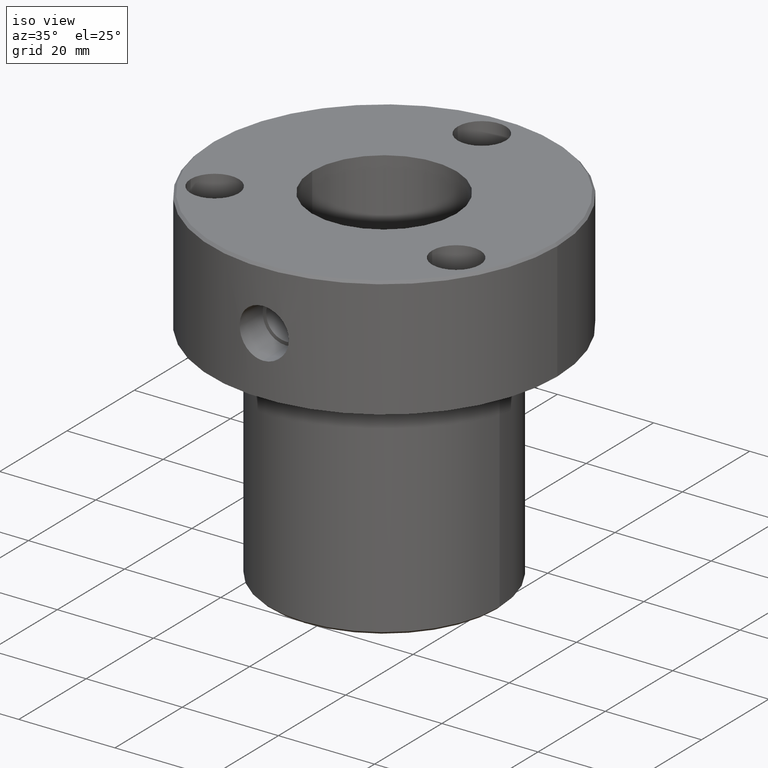
[diagram: clean part render]
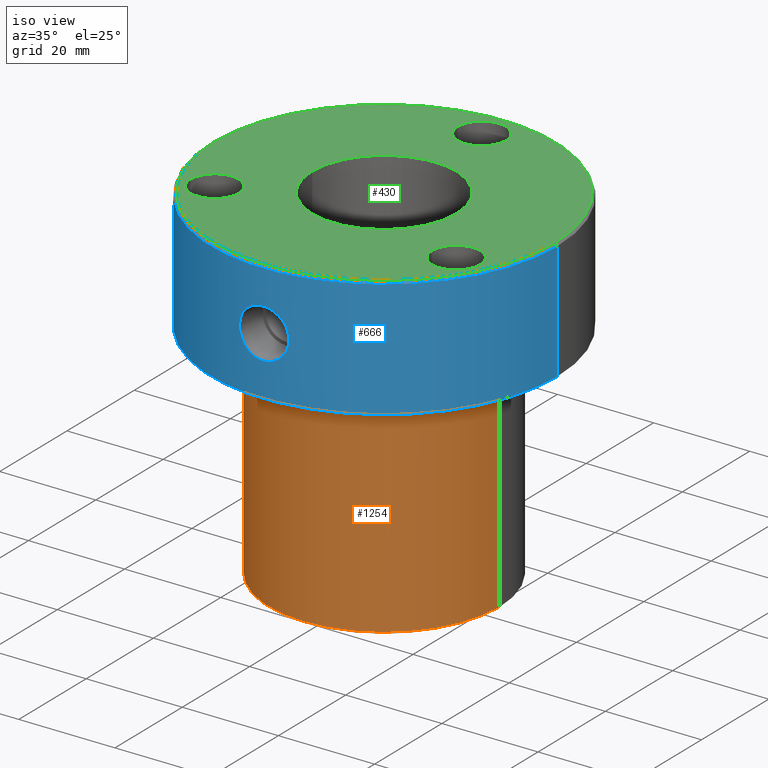
[diagram: same view with three faces highlighted in distinct colors, each labeled with its STEP entity id]
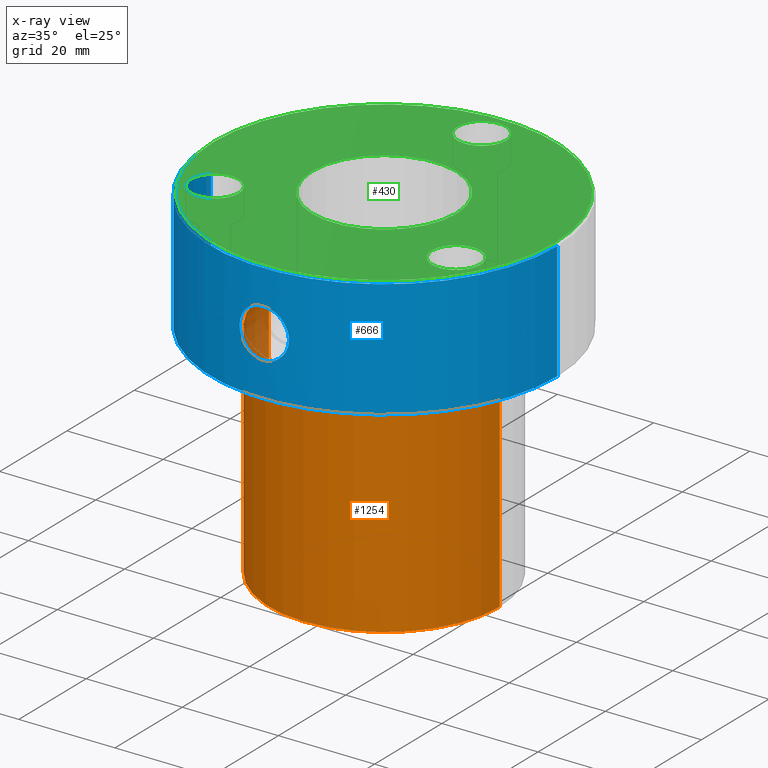
[diagram: x-ray of the same camera — body ghosted, the three highlighted faces saturated]
A machine part, iso view with three faces highlighted in distinct colors.
The next image is the same camera in x-ray (body ghosted, the three faces saturated) — at least one of them is partly hidden behind the body in this view.
Their STEP definitions:

[orange] entity #1254 — the highlighted cylindrical surface (partial cylindrical patch) has radius 24 mm, axis along (-0, -0, 1).
#60 = ORIENTED_EDGE ( 'NONE', *, *, #1068, .F. ) ;
#87 = CARTESIAN_POINT ( 'NONE',  ( -24.00000000000000000, 2.939152317953647894E-15, -71.50000000000000000 ) ) ;
#98 = CARTESIAN_POINT ( 'NONE',  ( -24.00000000000000000, 2.939152317953647894E-15, 0.000000000000000000 ) ) ;
#125 = FACE_OUTER_BOUND ( 'NONE', #398, .T. ) ;
#161 = CARTESIAN_POINT ( 'NONE',  ( 24.00000000000000000, 0.000000000000000000, 0.000000000000000000 ) ) ;
#283 = CARTESIAN_POINT ( 'NONE',  ( 0.000000000000000000, 0.000000000000000000, -24.99999999999999289 ) ) ;
#294 = DIRECTION ( 'NONE',  ( -0.000000000000000000, -0.000000000000000000, 1.000000000000000000 ) ) ;
#310 = CARTESIAN_POINT ( 'NONE',  ( 0.000000000000000000, 0.000000000000000000, 0.000000000000000000 ) ) ;
#334 = LINE ( 'NONE', #161, #629 ) ;
#398 = EDGE_LOOP ( 'NONE', ( #60, #1040, #686, #536 ) ) ;
#410 = EDGE_CURVE ( 'NONE', #486, #512, #412, .T. ) ;
#412 = CIRCLE ( 'NONE', #1156, 24.00000000000000000 ) ;
#461 = EDGE_CURVE ( 'NONE', #512, #537, #334, .T. ) ;
#484 = DIRECTION ( 'NONE',  ( 1.000000000000000000, 0.000000000000000000, 0.000000000000000000 ) ) ;
#486 = VERTEX_POINT ( 'NONE', #87 ) ;
#509 = DIRECTION ( 'NONE',  ( -0.000000000000000000, -0.000000000000000000, 1.000000000000000000 ) ) ;
#512 = VERTEX_POINT ( 'NONE', #1050 ) ;
#536 = ORIENTED_EDGE ( 'NONE', *, *, #1176, .F. ) ;
#537 = VERTEX_POINT ( 'NONE', #1104 ) ;
#600 = LINE ( 'NONE', #98, #1204 ) ;
#627 = VERTEX_POINT ( 'NONE', #763 ) ;
#629 = VECTOR ( 'NONE', #1147, 1000.000000000000000 ) ;
#633 = CARTESIAN_POINT ( 'NONE',  ( 0.000000000000000000, 0.000000000000000000, -71.50000000000000000 ) ) ;
#686 = ORIENTED_EDGE ( 'NONE', *, *, #461, .T. ) ;
#749 = AXIS2_PLACEMENT_3D ( 'NONE', #283, #294, #484 ) ;
#763 = CARTESIAN_POINT ( 'NONE',  ( -24.00000000000000000, 2.939152317953647894E-15, -24.99999999999999289 ) ) ;
#860 = CIRCLE ( 'NONE', #749, 24.00000000000000000 ) ;
#909 = DIRECTION ( 'NONE',  ( -0.000000000000000000, -0.000000000000000000, 1.000000000000000000 ) ) ;
#918 = DIRECTION ( 'NONE',  ( 1.000000000000000000, 0.000000000000000000, 0.000000000000000000 ) ) ;
#921 = DIRECTION ( 'NONE',  ( -1.000000000000000000, 0.000000000000000000, 0.000000000000000000 ) ) ;
#1016 = CYLINDRICAL_SURFACE ( 'NONE', #1180, 24.00000000000000000 ) ;
#1040 = ORIENTED_EDGE ( 'NONE', *, *, #410, .T. ) ;
#1050 = CARTESIAN_POINT ( 'NONE',  ( 24.00000000000000000, 0.000000000000000000, -71.50000000000000000 ) ) ;
#1068 = EDGE_CURVE ( 'NONE', #486, #627, #600, .T. ) ;
#1104 = CARTESIAN_POINT ( 'NONE',  ( 24.00000000000000000, 0.000000000000000000, -24.99999999999999289 ) ) ;
#1147 = DIRECTION ( 'NONE',  ( -0.000000000000000000, -0.000000000000000000, 1.000000000000000000 ) ) ;
#1156 = AXIS2_PLACEMENT_3D ( 'NONE', #633, #509, #921 ) ;
#1165 = DIRECTION ( 'NONE',  ( -0.000000000000000000, -0.000000000000000000, 1.000000000000000000 ) ) ;
#1176 = EDGE_CURVE ( 'NONE', #627, #537, #860, .T. ) ;
#1180 = AXIS2_PLACEMENT_3D ( 'NONE', #310, #909, #918 ) ;
#1204 = VECTOR ( 'NONE', #1165, 1000.000000000000000 ) ;
#1254 = ADVANCED_FACE ( 'NONE', ( #125 ), #1016, .T. ) ;

[blue] entity #666 — the highlighted cylindrical surface (partial cylindrical patch) has radius 36 mm, axis along (-0, -0, 1).
#1 = CARTESIAN_POINT ( 'NONE',  ( 3.134851411221557971, -35.86436338319735029, -8.663408683850164493 ) ) ;
#6 = CARTESIAN_POINT ( 'NONE',  ( 4.454688299235059823, -35.72381133161002964, -15.32627421644871468 ) ) ;
#11 = CARTESIAN_POINT ( 'NONE',  ( 36.00000000000000000, 0.000000000000000000, 0.000000000000000000 ) ) ;
#12 = CARTESIAN_POINT ( 'NONE',  ( 4.455019366375490897, -35.72377563291573921, -10.17406853261149990 ) ) ;
#21 = CARTESIAN_POINT ( 'NONE',  ( 5.132468915830044054, -35.63225733572879506, -13.08687422678917933 ) ) ;
#56 = ORIENTED_EDGE ( 'NONE', *, *, #383, .T. ) ;
#65 = CARTESIAN_POINT ( 'NONE',  ( -4.615790708340534287, -35.70309573215841681, -15.02364172483657256 ) ) ;
#71 = CARTESIAN_POINT ( 'NONE',  ( -0.3361067275072111560, -36.00000000000001421, -7.606626999999983596 ) ) ;
#77 = CARTESIAN_POINT ( 'NONE',  ( -5.066001198085445800, -35.64178358665389368, -11.90850973993781992 ) ) ;
#84 = VERTEX_POINT ( 'NONE', #855 ) ;
#89 = CARTESIAN_POINT ( 'NONE',  ( 2.570089392832816344, -35.90845072443985941, -17.20524208273297617 ) ) ;
#93 = CARTESIAN_POINT ( 'NONE',  ( 1.335832289506346138, -35.97675110359922712, -17.72775875594555117 ) ) ;
#108 = CARTESIAN_POINT ( 'NONE',  ( 4.870776703703421973, -35.66920957809382742, -14.40600504608524979 ) ) ;
#114 = CARTESIAN_POINT ( 'NONE',  ( 2.571459298321395526, -35.90915553629102419, -8.285819686161667974 ) ) ;
#153 = VERTEX_POINT ( 'NONE', #376 ) ;
#156 = CARTESIAN_POINT ( 'NONE',  ( -3.132282132631538207, -35.86455603857671548, -8.661827584422121973 ) ) ;
#158 = CARTESIAN_POINT ( 'NONE',  ( -1.335362368965270274, -35.97674113740099955, -17.72768090413853415 ) ) ;
#163 = DIRECTION ( 'NONE',  ( -0.000000000000000000, -0.000000000000000000, 1.000000000000000000 ) ) ;
#165 = EDGE_CURVE ( 'NONE', #637, #1020, #201, .T. ) ;
#167 = CARTESIAN_POINT ( 'NONE',  ( -5.132480326373275226, -35.63225569218960942, -13.08318454073698511 ) ) ;
#172 = CARTESIAN_POINT ( 'NONE',  ( -4.452942759247334514, -35.72402988663296242, -10.17069915215211573 ) ) ;
#184 = CARTESIAN_POINT ( 'NONE',  ( -0.6715231242244814602, -35.99412889237471092, -17.85196652225037539 ) ) ;
#189 = CARTESIAN_POINT ( 'NONE',  ( 4.869320642961361578, -35.66940571283051753, -11.09014689618406635 ) ) ;
#197 = CARTESIAN_POINT ( 'NONE',  ( 5.099130274031547394, -35.63710454467858568, -12.07612216934112404 ) ) ;
#201 = LINE ( 'NONE', #708, #206 ) ;
#206 = VECTOR ( 'NONE', #1091, 1000.000000000000000 ) ;
#215 = CARTESIAN_POINT ( 'NONE',  ( 4.175012378777728905, -35.75721056505209106, -9.753807887219853257 ) ) ;
#250 = AXIS2_PLACEMENT_3D ( 'NONE', #525, #908, #895 ) ;
#255 = CARTESIAN_POINT ( 'NONE',  ( -2.576638186247376172, -35.90875484596557499, -17.21084344985863979 ) ) ;
#272 = CARTESIAN_POINT ( 'NONE',  ( -4.081358766602609656, -35.76838717605889428, -9.613498045051994012 ) ) ;
#284 = AXIS2_PLACEMENT_3D ( 'NONE', #1193, #322, #452 ) ;
#289 = CARTESIAN_POINT ( 'NONE',  ( 1.657239417139547255, -35.96316859498720220, -17.62941402757830645 ) ) ;
#293 = CARTESIAN_POINT ( 'NONE',  ( 5.099012622426519314, -35.63712115515072298, -13.42446733174833362 ) ) ;
#299 = CARTESIAN_POINT ( 'NONE',  ( 6.298815282759539701E-16, -36.00000000000000000, -7.606626999999987149 ) ) ;
#300 = FACE_BOUND ( 'NONE', #1227, .T. ) ;
#305 = VECTOR ( 'NONE', #702, 1000.000000000000000 ) ;
#322 = DIRECTION ( 'NONE',  ( 0.000000000000000000, 0.000000000000000000, -1.000000000000000000 ) ) ;
#323 = CYLINDRICAL_SURFACE ( 'NONE', #250, 36.00000000000000000 ) ;
#332 = VERTEX_POINT ( 'NONE', #476 ) ;
#347 = EDGE_CURVE ( 'NONE', #332, #153, #779, .T. ) ;
#351 = CARTESIAN_POINT ( 'NONE',  ( -1.334472260636662133, -35.97676177568234124, -7.772172400854750585 ) ) ;
#370 = EDGE_CURVE ( 'NONE', #1010, #1020, #524, .T. ) ;
#376 = CARTESIAN_POINT ( 'NONE',  ( 6.298815282759539701E-16, -36.00000000000000000, -7.606626999999987149 ) ) ;
#383 = EDGE_CURVE ( 'NONE', #637, #84, #970, .T. ) ;
#390 = CARTESIAN_POINT ( 'NONE',  ( 4.968518926129060098, -35.65554893085495536, -11.41781017927310771 ) ) ;
#399 = CARTESIAN_POINT ( 'NONE',  ( 1.812095684196976642, -35.95469751019649607, -7.934954253576164795 ) ) ;
#406 = CARTESIAN_POINT ( 'NONE',  ( 4.612444849566888827, -35.70353119707042566, -10.46937732415865874 ) ) ;
#426 = CARTESIAN_POINT ( 'NONE',  ( -3.867744682383481347, -35.79242907306673516, -16.14777688475753337 ) ) ;
#448 = CARTESIAN_POINT ( 'NONE',  ( -5.124100043890623013, -35.63346569493480587, -12.41299369725978963 ) ) ;
#452 = DIRECTION ( 'NONE',  ( 1.000000000000000000, 0.000000000000000000, 0.000000000000000000 ) ) ;
#458 = CARTESIAN_POINT ( 'NONE',  ( -2.577004002287619056, -35.90872625943177354, -8.289395687327473894 ) ) ;
#463 = CARTESIAN_POINT ( 'NONE',  ( -5.100166516558003238, -35.63695738235751520, -13.41789004543118402 ) ) ;
#476 = CARTESIAN_POINT ( 'NONE',  ( 3.571817028434180789E-21, -36.00000000000000000, -17.89337299999998621 ) ) ;
#477 = ORIENTED_EDGE ( 'NONE', *, *, #347, .F. ) ;
#483 = CARTESIAN_POINT ( 'NONE',  ( 4.612450577060112522, -35.70353312065206097, -15.03093629859708713 ) ) ;
#488 = CARTESIAN_POINT ( 'NONE',  ( 2.121153321150935245, -35.93778920659239873, -17.43656400794046490 ) ) ;
#494 = CARTESIAN_POINT ( 'NONE',  ( 2.272818404094694156, -35.92849133234913239, -17.36465140196043677 ) ) ;
#505 = CARTESIAN_POINT ( 'NONE',  ( 3.135146423121419890, -35.86431980584649892, -16.83614949334460675 ) ) ;
#514 = CARTESIAN_POINT ( 'NONE',  ( 2.275809720756746035, -35.92932709345632247, -8.127738614779113746 ) ) ;
#524 = CIRCLE ( 'NONE', #284, 36.00000000000000000 ) ;
#525 = CARTESIAN_POINT ( 'NONE',  ( 0.000000000000000000, 0.000000000000000000, 0.000000000000000000 ) ) ;
#554 = CARTESIAN_POINT ( 'NONE',  ( -3.394016580218661261, -35.84044962157522463, -8.877090623383150358 ) ) ;
#555 = CARTESIAN_POINT ( 'NONE',  ( 0.000000000000000000, 0.000000000000000000, -24.99999999999999289 ) ) ;
#557 = ORIENTED_EDGE ( 'NONE', *, *, #165, .F. ) ;
#559 = CARTESIAN_POINT ( 'NONE',  ( -3.869813446050350159, -35.79220196518004826, -9.354639173738936719 ) ) ;
#569 = CARTESIAN_POINT ( 'NONE',  ( 36.00000000000000000, 0.000000000000000000, -0.4999999999999796274 ) ) ;
#573 = B_SPLINE_CURVE_WITH_KNOTS ( 'NONE', 3,
 ( #634, #71, #957, #351, #1229, #1036, #458, #156, #554, #559, #272, #172, #1137, #675, #947, #77, #668, #448, #1049, #167, #463, #922, #868, #65, #1236, #768, #426, #753, #1135, #255, #659, #1042, #158, #978, #184, #785, #678, #1057 ),
 .UNSPECIFIED., .F., .F.,
 ( 4, 2, 2, 2, 2, 2, 2, 2, 2, 2, 2, 2, 2, 2, 2, 2, 2, 2, 4 ),
 ( 0.02023265630584750174, 0.02123748081429662621, 0.02224230532274575414, 0.02324712983119488208, 0.02425195433964400654, 0.02525677884809313448, 0.02626160335654226241, 0.02726642786499138688, 0.02776884011921594911, 0.02827125237344051134, 0.02927607688188963581, 0.03028090139033876027, 0.03128572589878789167, 0.03229055040723700920, 0.03329537491568613367, 0.03430019942413525813, 0.03530502393258437566, 0.03580743618680894136, 0.03630984844103350012 ),
 .UNSPECIFIED. ) ;
#589 = CARTESIAN_POINT ( 'NONE',  ( 3.393533373212614723, -35.84048388370862881, -8.876894584173426139 ) ) ;
#597 = CARTESIAN_POINT ( 'NONE',  ( 1.654126241111264051, -35.96234114261679338, -7.878137646354945289 ) ) ;
#613 = CARTESIAN_POINT ( 'NONE',  ( -36.00000000000000000, 4.408728476930470856E-15, -24.99999999999999289 ) ) ;
#634 = CARTESIAN_POINT ( 'NONE',  ( 6.298815282759539701E-16, -36.00000000000000000, -7.606626999999987149 ) ) ;
#637 = VERTEX_POINT ( 'NONE', #613 ) ;
#659 = CARTESIAN_POINT ( 'NONE',  ( -2.275587720639904443, -35.92934925681800706, -17.37244262154168339 ) ) ;
#666 = ADVANCED_FACE ( 'NONE', ( #721, #300 ), #323, .T. ) ;
#668 = CARTESIAN_POINT ( 'NONE',  ( -5.091049653408040498, -35.63820270606292695, -12.07721189375376447 ) ) ;
#670 = DIRECTION ( 'NONE',  ( 1.000000000000000000, 0.000000000000000000, 0.000000000000000000 ) ) ;
#675 = CARTESIAN_POINT ( 'NONE',  ( -4.870061513962859578, -35.66930335032450472, -11.09241811007563072 ) ) ;
#678 = CARTESIAN_POINT ( 'NONE',  ( -0.1675429042383714540, -36.00000000000000711, -17.89337299999999331 ) ) ;
#691 = CARTESIAN_POINT ( 'NONE',  ( 3.867194275753138122, -35.79247892995611835, -16.14821262891811671 ) ) ;
#702 = DIRECTION ( 'NONE',  ( -0.000000000000000000, -0.000000000000000000, 1.000000000000000000 ) ) ;
#708 = CARTESIAN_POINT ( 'NONE',  ( -36.00000000000000000, 4.408728476930470856E-15, 0.000000000000000000 ) ) ;
#712 = CARTESIAN_POINT ( 'NONE',  ( 3.393221447277317893, -35.84051879824716025, -16.62348283471833454 ) ) ;
#721 = FACE_OUTER_BOUND ( 'NONE', #1216, .T. ) ;
#753 = CARTESIAN_POINT ( 'NONE',  ( -3.390904222931096612, -35.84074771024629769, -16.62568980151061382 ) ) ;
#765 = CARTESIAN_POINT ( 'NONE',  ( -36.00000000000000000, 4.408728476930470856E-15, -0.4999999999999796274 ) ) ;
#768 = CARTESIAN_POINT ( 'NONE',  ( -4.082279283164364614, -35.76828787354437367, -15.88554681719237038 ) ) ;
#779 = B_SPLINE_CURVE_WITH_KNOTS ( 'NONE', 3,
 ( #994, #822, #882, #93, #289, #488, #494, #89, #999, #505, #712, #691, #1085, #6, #483, #108, #888, #293, #21, #894, #197, #390, #189, #406, #12, #215, #795, #1081, #1162, #589, #1, #114, #514, #399, #597, #801, #986, #907, #1170, #299 ),
 .UNSPECIFIED., .F., .F.,
 ( 4, 2, 2, 2, 2, 2, 2, 2, 2, 2, 2, 2, 2, 2, 2, 2, 2, 2, 2, 4 ),
 ( 0.004144744938621530879, 0.005150239399073153028, 0.006155733859524775177, 0.006658481089750586251, 0.007161228319976396459, 0.008166722780428018608, 0.009172217240879639022, 0.01017771170133125944, 0.01118320616178287812, 0.01218870062223450026, 0.01319419508268611721, 0.01419968954313774109, 0.01520518400358935804, 0.01570793123381516998, 0.01621067846404098539, 0.01721617292449261274, 0.01822166738494424357, 0.01872441461517005898, 0.01922716184539587439, 0.02023265630584750174 ),
 .UNSPECIFIED. ) ;
#785 = CARTESIAN_POINT ( 'NONE',  ( -0.3353535181282963351, -35.99883048162996602, -17.88517202957152108 ) ) ;
#787 = ORIENTED_EDGE ( 'NONE', *, *, #370, .T. ) ;
#795 = CARTESIAN_POINT ( 'NONE',  ( 4.073750510498462596, -35.76892631714162718, -9.616935401809428186 ) ) ;
#801 = CARTESIAN_POINT ( 'NONE',  ( 1.331207150646882331, -35.97574184921764129, -7.779769563068786198 ) ) ;
#808 = LINE ( 'NONE', #11, #305 ) ;
#822 = CARTESIAN_POINT ( 'NONE',  ( 0.3353092220245999511, -35.99999999999999289, -17.89337299999998621 ) ) ;
#855 = CARTESIAN_POINT ( 'NONE',  ( 36.00000000000000000, 0.000000000000000000, -24.99999999999999289 ) ) ;
#868 = CARTESIAN_POINT ( 'NONE',  ( -4.870985339044030304, -35.66917535561609043, -14.40470360826312657 ) ) ;
#876 = EDGE_CURVE ( 'NONE', #153, #332, #573, .T. ) ;
#882 = CARTESIAN_POINT ( 'NONE',  ( 0.6695539294417952592, -35.99531588153639916, -17.86076756866215121 ) ) ;
#888 = CARTESIAN_POINT ( 'NONE',  ( 4.968640645482770068, -35.65553174595231667, -14.08157981711600470 ) ) ;
#894 = CARTESIAN_POINT ( 'NONE',  ( 5.132256074719487415, -35.63228799270495273, -12.40988469272170569 ) ) ;
#895 = DIRECTION ( 'NONE',  ( 1.000000000000000000, 0.000000000000000000, 0.000000000000000000 ) ) ;
#907 = CARTESIAN_POINT ( 'NONE',  ( 0.6698195256892720550, -35.99528778390568107, -7.639439484074522113 ) ) ;
#908 = DIRECTION ( 'NONE',  ( -0.000000000000000000, -0.000000000000000000, 1.000000000000000000 ) ) ;
#922 = CARTESIAN_POINT ( 'NONE',  ( -4.968358492892852141, -35.65557240957834750, -14.08375826072354720 ) ) ;
#926 = ORIENTED_EDGE ( 'NONE', *, *, #876, .F. ) ;
#947 = CARTESIAN_POINT ( 'NONE',  ( -4.967239168825848594, -35.65572824311934852, -11.41264983495981333 ) ) ;
#953 = EDGE_CURVE ( 'NONE', #84, #1010, #808, .T. ) ;
#957 = CARTESIAN_POINT ( 'NONE',  ( -0.6768412377640536937, -35.99513981105601346, -7.640486352620248667 ) ) ;
#970 = CIRCLE ( 'NONE', #1140, 36.00000000000000000 ) ;
#978 = CARTESIAN_POINT ( 'NONE',  ( -0.8401113678963481046, -35.99057497138012707, -17.82680413233868322 ) ) ;
#986 = CARTESIAN_POINT ( 'NONE',  ( 1.165764879794188413, -35.98150000286027250, -7.738214538170568702 ) ) ;
#994 = CARTESIAN_POINT ( 'NONE',  ( 3.571817028434180789E-21, -36.00000000000000000, -17.89337299999998621 ) ) ;
#999 = CARTESIAN_POINT ( 'NONE',  ( 2.715994306536742897, -35.89767429074579752, -17.11743241194078635 ) ) ;
#1010 = VERTEX_POINT ( 'NONE', #569 ) ;
#1020 = VERTEX_POINT ( 'NONE', #765 ) ;
#1036 = CARTESIAN_POINT ( 'NONE',  ( -2.279323674699770486, -35.92913036428053886, -8.129239255269382625 ) ) ;
#1042 = CARTESIAN_POINT ( 'NONE',  ( -1.655426372826040105, -35.96325904331931156, -17.63009013256227320 ) ) ;
#1049 = CARTESIAN_POINT ( 'NONE',  ( -5.132303483038378467, -35.63228116415699986, -12.58068670786477483 ) ) ;
#1057 = CARTESIAN_POINT ( 'NONE',  ( 3.571817028434180789E-21, -36.00000000000000000, -17.89337299999998621 ) ) ;
#1081 = CARTESIAN_POINT ( 'NONE',  ( 3.860273976072881918, -35.79259445657086758, -9.356314350695761561 ) ) ;
#1085 = CARTESIAN_POINT ( 'NONE',  ( 4.083460599242995315, -35.76814635166661560, -15.88375512178560456 ) ) ;
#1091 = DIRECTION ( 'NONE',  ( -0.000000000000000000, -0.000000000000000000, 1.000000000000000000 ) ) ;
#1135 = CARTESIAN_POINT ( 'NONE',  ( -3.132516396897012001, -35.86453791635487676, -16.83802151031922989 ) ) ;
#1137 = CARTESIAN_POINT ( 'NONE',  ( -4.613851569483705894, -35.70334822312924672, -10.47230001879731631 ) ) ;
#1140 = AXIS2_PLACEMENT_3D ( 'NONE', #555, #163, #670 ) ;
#1162 = CARTESIAN_POINT ( 'NONE',  ( 3.747803063487487041, -35.80458155935752984, -9.232037138303441637 ) ) ;
#1170 = CARTESIAN_POINT ( 'NONE',  ( 0.3363308217378480625, -36.00000000000000000, -7.606626999999984484 ) ) ;
#1193 = CARTESIAN_POINT ( 'NONE',  ( 0.000000000000000000, 0.000000000000000000, -0.4999999999999796274 ) ) ;
#1198 = ORIENTED_EDGE ( 'NONE', *, *, #953, .T. ) ;
#1216 = EDGE_LOOP ( 'NONE', ( #557, #56, #1198, #787 ) ) ;
#1227 = EDGE_LOOP ( 'NONE', ( #477, #926 ) ) ;
#1229 = CARTESIAN_POINT ( 'NONE',  ( -1.655037379787138496, -35.96329484931852960, -7.869619187362687285 ) ) ;
#1236 = CARTESIAN_POINT ( 'NONE',  ( -4.456035437276217870, -35.72365000573475413, -15.32423349465898177 ) ) ;

[green] entity #430 — the highlighted planar face has unit normal (0, -0, 1).
#19 = EDGE_LOOP ( 'NONE', ( #449, #671 ) ) ;
#23 = DIRECTION ( 'NONE',  ( 1.000000000000000000, 0.000000000000000000, 0.000000000000000000 ) ) ;
#25 = DIRECTION ( 'NONE',  ( 0.000000000000000000, -0.000000000000000000, 1.000000000000000000 ) ) ;
#29 = AXIS2_PLACEMENT_3D ( 'NONE', #39, #109, #802 ) ;
#36 = EDGE_CURVE ( 'NONE', #1101, #185, #264, .T. ) ;
#39 = CARTESIAN_POINT ( 'NONE',  ( -25.11473670974875105, -14.49999999999994316, 0.000000000000000000 ) ) ;
#42 = FACE_BOUND ( 'NONE', #1032, .T. ) ;
#69 = EDGE_CURVE ( 'NONE', #518, #799, #709, .T. ) ;
#97 = DIRECTION ( 'NONE',  ( 1.000000000000000000, 0.000000000000000000, 0.000000000000000000 ) ) ;
#109 = DIRECTION ( 'NONE',  ( -0.000000000000000000, -0.000000000000000000, 1.000000000000000000 ) ) ;
#113 = CARTESIAN_POINT ( 'NONE',  ( -20.11473670974875105, -14.49999999999994316, 0.000000000000000000 ) ) ;
#127 = FACE_BOUND ( 'NONE', #717, .T. ) ;
#137 = VERTEX_POINT ( 'NONE', #188 ) ;
#146 = ORIENTED_EDGE ( 'NONE', *, *, #728, .T. ) ;
#159 = EDGE_CURVE ( 'NONE', #915, #372, #816, .T. ) ;
#183 = CIRCLE ( 'NONE', #771, 5.000000000000000888 ) ;
#185 = VERTEX_POINT ( 'NONE', #1039 ) ;
#188 = CARTESIAN_POINT ( 'NONE',  ( -35.50000000000001421, 0.000000000000000000, 0.000000000000000000 ) ) ;
#208 = CIRCLE ( 'NONE', #744, 5.000000000000000888 ) ;
#221 = ORIENTED_EDGE ( 'NONE', *, *, #567, .F. ) ;
#257 = ORIENTED_EDGE ( 'NONE', *, *, #69, .T. ) ;
#264 = CIRCLE ( 'NONE', #1116, 5.000000000000000888 ) ;
#265 = DIRECTION ( 'NONE',  ( -0.000000000000000000, -0.000000000000000000, 1.000000000000000000 ) ) ;
#286 = VERTEX_POINT ( 'NONE', #942 ) ;
#291 = EDGE_CURVE ( 'NONE', #137, #1123, #752, .T. ) ;
#306 = ORIENTED_EDGE ( 'NONE', *, *, #291, .T. ) ;
#309 = AXIS2_PLACEMENT_3D ( 'NONE', #527, #920, #599 ) ;
#318 = FACE_BOUND ( 'NONE', #19, .T. ) ;
#321 = CARTESIAN_POINT ( 'NONE',  ( 0.000000000000000000, 0.000000000000000000, 0.000000000000000000 ) ) ;
#327 = DIRECTION ( 'NONE',  ( -1.000000000000000000, 0.000000000000000000, 0.000000000000000000 ) ) ;
#333 = EDGE_CURVE ( 'NONE', #286, #892, #183, .T. ) ;
#352 = CIRCLE ( 'NONE', #29, 5.000000000000000888 ) ;
#371 = DIRECTION ( 'NONE',  ( 1.000000000000000000, 0.000000000000000000, 0.000000000000000000 ) ) ;
#372 = VERTEX_POINT ( 'NONE', #654 ) ;
#423 = EDGE_LOOP ( 'NONE', ( #306, #1026 ) ) ;
#425 = FACE_OUTER_BOUND ( 'NONE', #423, .T. ) ;
#430 = ADVANCED_FACE ( 'NONE', ( #318, #127, #903, #42, #425 ), #833, .T. ) ;
#447 = EDGE_LOOP ( 'NONE', ( #221, #732 ) ) ;
#449 = ORIENTED_EDGE ( 'NONE', *, *, #159, .F. ) ;
#451 = AXIS2_PLACEMENT_3D ( 'NONE', #1207, #734, #1108 ) ;
#459 = ORIENTED_EDGE ( 'NONE', *, *, #333, .F. ) ;
#470 = AXIS2_PLACEMENT_3D ( 'NONE', #1172, #1058, #23 ) ;
#474 = AXIS2_PLACEMENT_3D ( 'NONE', #872, #1244, #371 ) ;
#492 = AXIS2_PLACEMENT_3D ( 'NONE', #608, #814, #1083 ) ;
#506 = EDGE_CURVE ( 'NONE', #892, #286, #208, .T. ) ;
#518 = VERTEX_POINT ( 'NONE', #606 ) ;
#527 = CARTESIAN_POINT ( 'NONE',  ( 0.000000000000000000, 29.00000000000000000, 0.000000000000000000 ) ) ;
#533 = ORIENTED_EDGE ( 'NONE', *, *, #506, .F. ) ;
#567 = EDGE_CURVE ( 'NONE', #185, #1101, #602, .T. ) ;
#585 = DIRECTION ( 'NONE',  ( 1.000000000000000000, 0.000000000000000000, 0.000000000000000000 ) ) ;
#593 = CARTESIAN_POINT ( 'NONE',  ( -5.000000000000000888, 29.00000000000000000, 0.000000000000000000 ) ) ;
#599 = DIRECTION ( 'NONE',  ( 1.000000000000000000, 0.000000000000000000, 0.000000000000000000 ) ) ;
#602 = CIRCLE ( 'NONE', #309, 5.000000000000000888 ) ;
#603 = DIRECTION ( 'NONE',  ( 1.000000000000000000, 0.000000000000000000, 0.000000000000000000 ) ) ;
#606 = CARTESIAN_POINT ( 'NONE',  ( 15.00000000000000000, 1.836970198721029589E-15, 0.000000000000000000 ) ) ;
#608 = CARTESIAN_POINT ( 'NONE',  ( -25.11473670974875105, -14.49999999999994316, 0.000000000000000000 ) ) ;
#643 = EDGE_CURVE ( 'NONE', #372, #915, #352, .T. ) ;
#654 = CARTESIAN_POINT ( 'NONE',  ( -30.11473670974875105, -14.49999999999994316, 0.000000000000000000 ) ) ;
#671 = ORIENTED_EDGE ( 'NONE', *, *, #643, .F. ) ;
#690 = AXIS2_PLACEMENT_3D ( 'NONE', #736, #25, #730 ) ;
#696 = DIRECTION ( 'NONE',  ( -0.000000000000000000, -0.000000000000000000, 1.000000000000000000 ) ) ;
#709 = CIRCLE ( 'NONE', #1009, 15.00000000000000000 ) ;
#711 = CARTESIAN_POINT ( 'NONE',  ( 0.000000000000000000, 29.00000000000000000, 0.000000000000000000 ) ) ;
#717 = EDGE_LOOP ( 'NONE', ( #459, #533 ) ) ;
#726 = DIRECTION ( 'NONE',  ( 0.000000000000000000, 0.000000000000000000, -1.000000000000000000 ) ) ;
#728 = EDGE_CURVE ( 'NONE', #799, #518, #748, .T. ) ;
#730 = DIRECTION ( 'NONE',  ( 1.000000000000000000, 0.000000000000000000, 0.000000000000000000 ) ) ;
#732 = ORIENTED_EDGE ( 'NONE', *, *, #36, .F. ) ;
#734 = DIRECTION ( 'NONE',  ( 0.000000000000000000, 0.000000000000000000, -1.000000000000000000 ) ) ;
#736 = CARTESIAN_POINT ( 'NONE',  ( 0.000000000000000000, 0.000000000000000000, 0.000000000000000000 ) ) ;
#744 = AXIS2_PLACEMENT_3D ( 'NONE', #1139, #265, #97 ) ;
#748 = CIRCLE ( 'NONE', #451, 15.00000000000000000 ) ;
#752 = CIRCLE ( 'NONE', #474, 35.50000000000001421 ) ;
#771 = AXIS2_PLACEMENT_3D ( 'NONE', #982, #696, #585 ) ;
#799 = VERTEX_POINT ( 'NONE', #1015 ) ;
#802 = DIRECTION ( 'NONE',  ( 1.000000000000000000, 0.000000000000000000, 0.000000000000000000 ) ) ;
#814 = DIRECTION ( 'NONE',  ( -0.000000000000000000, -0.000000000000000000, 1.000000000000000000 ) ) ;
#816 = CIRCLE ( 'NONE', #492, 5.000000000000000888 ) ;
#827 = DIRECTION ( 'NONE',  ( -0.000000000000000000, -0.000000000000000000, 1.000000000000000000 ) ) ;
#833 = PLANE ( 'NONE',  #690 ) ;
#872 = CARTESIAN_POINT ( 'NONE',  ( 0.000000000000000000, 0.000000000000000000, 0.000000000000000000 ) ) ;
#892 = VERTEX_POINT ( 'NONE', #1168 ) ;
#903 = FACE_BOUND ( 'NONE', #447, .T. ) ;
#915 = VERTEX_POINT ( 'NONE', #113 ) ;
#920 = DIRECTION ( 'NONE',  ( -0.000000000000000000, -0.000000000000000000, 1.000000000000000000 ) ) ;
#942 = CARTESIAN_POINT ( 'NONE',  ( 30.11473670974865868, -14.50000000000011013, 0.000000000000000000 ) ) ;
#982 = CARTESIAN_POINT ( 'NONE',  ( 25.11473670974865868, -14.50000000000011013, 0.000000000000000000 ) ) ;
#1009 = AXIS2_PLACEMENT_3D ( 'NONE', #321, #726, #327 ) ;
#1015 = CARTESIAN_POINT ( 'NONE',  ( -15.00000000000000000, 0.000000000000000000, 0.000000000000000000 ) ) ;
#1026 = ORIENTED_EDGE ( 'NONE', *, *, #1158, .T. ) ;
#1032 = EDGE_LOOP ( 'NONE', ( #146, #257 ) ) ;
#1039 = CARTESIAN_POINT ( 'NONE',  ( 5.000000000000000888, 29.00000000000000000, 0.000000000000000000 ) ) ;
#1058 = DIRECTION ( 'NONE',  ( -0.000000000000000000, -0.000000000000000000, 1.000000000000000000 ) ) ;
#1083 = DIRECTION ( 'NONE',  ( 1.000000000000000000, 0.000000000000000000, 0.000000000000000000 ) ) ;
#1087 = CIRCLE ( 'NONE', #470, 35.50000000000001421 ) ;
#1101 = VERTEX_POINT ( 'NONE', #593 ) ;
#1108 = DIRECTION ( 'NONE',  ( -1.000000000000000000, 0.000000000000000000, 0.000000000000000000 ) ) ;
#1116 = AXIS2_PLACEMENT_3D ( 'NONE', #711, #827, #603 ) ;
#1123 = VERTEX_POINT ( 'NONE', #1163 ) ;
#1139 = CARTESIAN_POINT ( 'NONE',  ( 25.11473670974865868, -14.50000000000011013, 0.000000000000000000 ) ) ;
#1158 = EDGE_CURVE ( 'NONE', #1123, #137, #1087, .T. ) ;
#1163 = CARTESIAN_POINT ( 'NONE',  ( 35.50000000000001421, 4.378112306951788646E-15, 0.000000000000000000 ) ) ;
#1168 = CARTESIAN_POINT ( 'NONE',  ( 20.11473670974865513, -14.50000000000011013, 0.000000000000000000 ) ) ;
#1172 = CARTESIAN_POINT ( 'NONE',  ( 0.000000000000000000, 0.000000000000000000, 0.000000000000000000 ) ) ;
#1207 = CARTESIAN_POINT ( 'NONE',  ( 0.000000000000000000, 0.000000000000000000, 0.000000000000000000 ) ) ;
#1244 = DIRECTION ( 'NONE',  ( -0.000000000000000000, -0.000000000000000000, 1.000000000000000000 ) ) ;